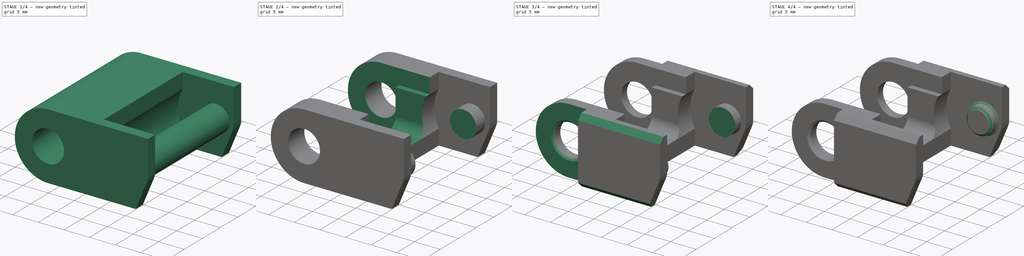
[diagram: build sequence overview — one tinted view per stage of 4, left to right]
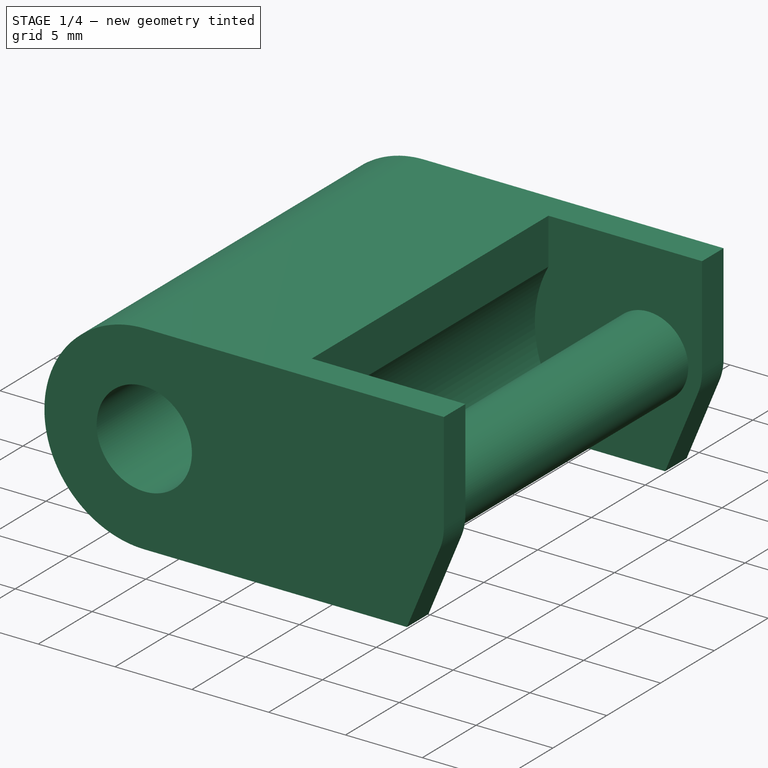
[diagram: stage 1 of 4 — iso view after this stage's code; geometry added in this stage tinted green]
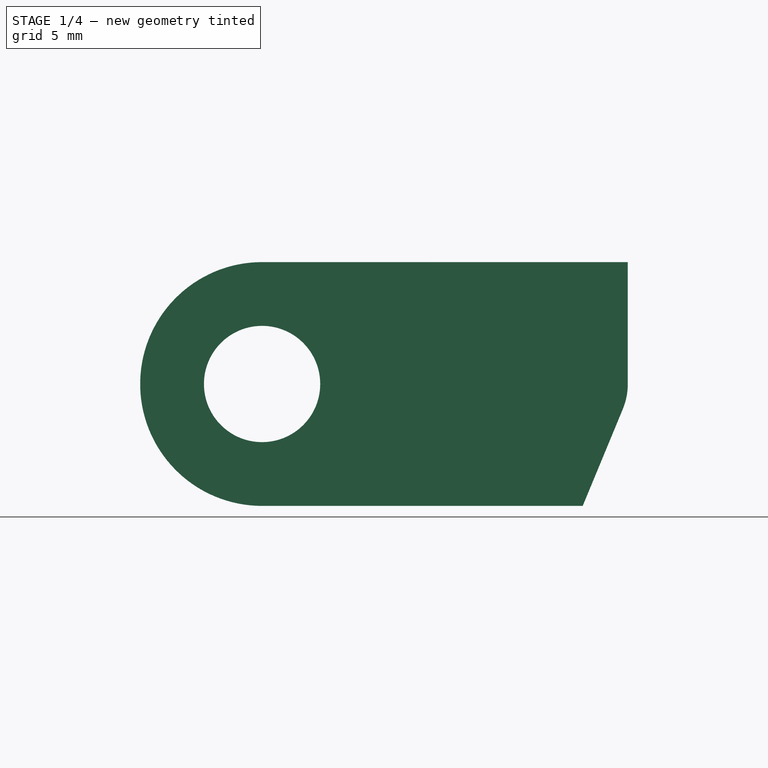
[diagram: stage 1 of 4 — front view after this stage's code; geometry added in this stage tinted green]
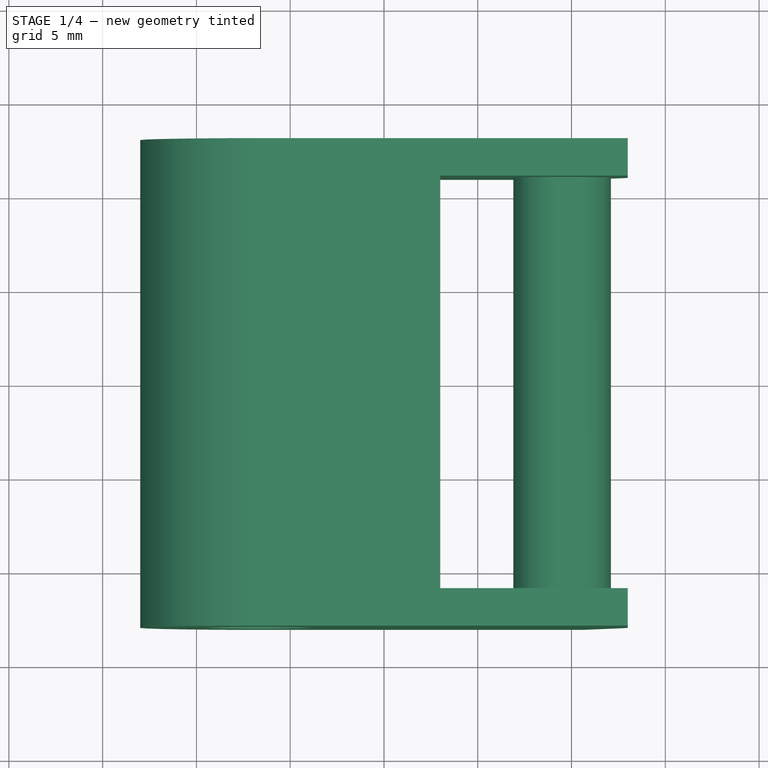
[diagram: stage 1 of 4 — top view after this stage's code; geometry added in this stage tinted green]
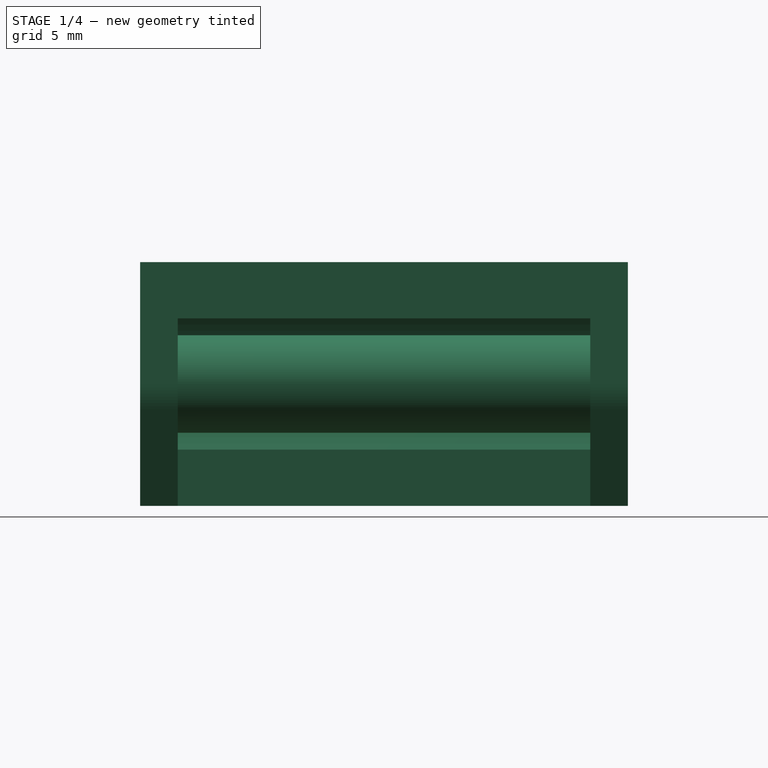
[diagram: stage 1 of 4 — right view after this stage's code; geometry added in this stage tinted green]
FCSTD DOCUMENT  (FreeCAD 0.19R20209 (Git))
Label: DragChainTop_001
License: Creative Commons Attribution
LicenseURL: http://creativecommons.org/licenses/by/4.0/
objects: Sketcher::SketchObject×5, PartDesign::Pocket×4, PartDesign::Chamfer×4, PartDesign::Pad×1, PartDesign::Body×1
note: 24 computed .brp shape members not serialized (recipe doc carries the construction recipe); baked Part::Feature solids carry a one-line shape summary decoded from their .brp

FEATURE [Sketcher::SketchObject] Sketch
  MapMode = 5
  Placement = pos=(0,0,0) rot=(1,0,0;1.5708rad)
  Support = -> [XZ_Plane]
  sketch-geometry (8):
    g0: LineSegment StartX=-6.5 StartY=6.5 StartZ=0 EndX=13 EndY=6.5 EndZ=0
    g1: LineSegment StartX=10.596 StartY=-6.5 StartZ=0 EndX=-6.5 EndY=-6.5 EndZ=0
    g2: LineSegment [constr] StartX=-13 StartY=-6.5 StartZ=0 EndX=-13 EndY=6.5 EndZ=0
    g3: ArcOfCircle CenterX=-6.5 CenterY=0 CenterZ=0 NormalX=0 NormalY=0 NormalZ=1 AngleXU=0 Radius=6.5 StartAngle=1.5708 EndAngle=4.71239
    g4: LineSegment StartX=13 StartY=6.5 StartZ=0 EndX=13 EndY=-9e-16 EndZ=0
    g5: LineSegment StartX=12.7336 StartY=-1.33939 StartZ=0 EndX=10.596 EndY=-6.5 EndZ=0
    g6: Circle CenterX=-6.5 CenterY=0 CenterZ=0 NormalX=0 NormalY=0 NormalZ=1 AngleXU=0 Radius=3.1
    g7: ArcOfCircle CenterX=9.5 CenterY=0 CenterZ=0 NormalX=0 NormalY=0 NormalZ=1 AngleXU=0 Radius=3.5 StartAngle=5.89049 EndAngle=6.28319
  constraints (22):
    c: Horizontal(g0)
    c: Horizontal(g1)
    c: DistanceX(g2,g0) = 26
    c: PointOnObject(g3,g-1)
    c: Vertical(g3,g3)
    c: Angle(g3) = 3.14159
    c: Tangent(g3,g2)
    c: Coincident(g0,g3)
    c: Coincident(g1,g3)
    c: Symmetric(g2,g2,g-1)
    c: DistanceY(g2,g2) = 13
    c: Vertical(g4)
    c: Coincident(g4,g0)
    c: Coincident(g5,g1)
    c: Diameter(g6) = 6.2
    c: Coincident(g6,g3)
    c: Symmetric(g0,g2,g-1)
    c: PointOnObject(g7,g-1)
    c: DistanceX(g3,g7) = 16
    c: Angle(g4,g5) = 2.74889
    c: Tangent(g5,g7) = 1.5708
    c: Tangent(g4,g7) = 1.5708
FEATURE [PartDesign::Pad] Pad
  Length = 26
  Length2 = 100
  Midplane = true
  Placement = pos=(0,0,0) rot=(1,0,0;1.5708rad)
  Profile = -> Sketch
  Refine = true
  Type = 0
FEATURE [Sketcher::SketchObject] Sketch001
  ExternalGeometry = -> [Pad]
  MapMode = 5
  Placement = pos=(0,0,0) rot=(1,0,0;1.5708rad)
  Support = -> [XZ_Plane]
  sketch-geometry (11):
    g0: Circle CenterX=9.5 CenterY=0 CenterZ=0 NormalX=0 NormalY=0 NormalZ=1 AngleXU=0 Radius=2.6
    g1: ArcOfCircle CenterX=9.5 CenterY=0 CenterZ=0 NormalX=0 NormalY=0 NormalZ=1 AngleXU=0 Radius=7.38241 StartAngle=2.64765 EndAngle=3.63553
    g2: LineSegment [constr] StartX=-3 StartY=11.0781 StartZ=0 EndX=3 EndY=11.0781 EndZ=0
    g3: LineSegment [constr] StartX=3 StartY=11.0781 StartZ=0 EndX=3 EndY=-11.0781 EndZ=0
    g4: LineSegment [constr] StartX=3 StartY=-11.0781 StartZ=0 EndX=-3 EndY=-11.0781 EndZ=0
    g5: LineSegment [constr] StartX=-3 StartY=-11.0781 StartZ=0 EndX=-3 EndY=11.0781 EndZ=0
    g6: LineSegment StartX=9.5 StartY=7.38241 StartZ=0 EndX=3 EndY=7.38241 EndZ=0
    g7: LineSegment StartX=3 StartY=7.38241 StartZ=0 EndX=3 EndY=3.5 EndZ=0
    g8: LineSegment StartX=3 StartY=-7.38241 StartZ=0 EndX=9.5 EndY=-7.38241 EndZ=0
    g9: LineSegment StartX=3 StartY=-3.5 StartZ=0 EndX=3 EndY=-7.38241 EndZ=0
    g10: ArcOfCircle CenterX=9.5 CenterY=0 CenterZ=0 NormalX=0 NormalY=0 NormalZ=1 AngleXU=0 Radius=7.38241 StartAngle=4.71239 EndAngle=7.85398
  constraints (29):
    c: Diameter(g0) = 5.2
    c: Coincident(g1,g0)
    c: Coincident(g0,g-3)
    c: PointOnObject(g-5,g1)
    c: Coincident(g2,g3)
    c: Coincident(g3,g4)
    c: Coincident(g4,g5)
    c: Coincident(g5,g2)
    c: Horizontal(g2)
    c: Horizontal(g4)
    c: Vertical(g3)
    c: Vertical(g5)
    c: Symmetric(g3,g2,g-1)
    c: DistanceX(g2,g2) = 6
    c: Coincident(g6,g7)
    c: Vertical(g7)
    c: Coincident(g9,g8)
    c: Horizontal(g8)
    c: Horizontal(g6)
    c: PointOnObject(g6,g3)
    c: PointOnObject(g7,g1)
    c: PointOnObject(g9,g1)
    c: Tangent(g7,g9)
    c: PointOnObject(g1,g3)
    c: PointOnObject(g10,g6)
    c: Equal(g1,g10)
    c: PointOnObject(g1,g3)
    c: Coincident(g10,g8)
    c: Coincident(g1,g10)
FEATURE [PartDesign::Pocket] Pocket
  BaseFeature = -> Pad
  Length = 22
  Length2 = 100
  Midplane = true
  Placement = pos=(0,0,0) rot=(1,0,0;1.5708rad)
  Profile = -> Sketch001
  Refine = true
  Type = 0
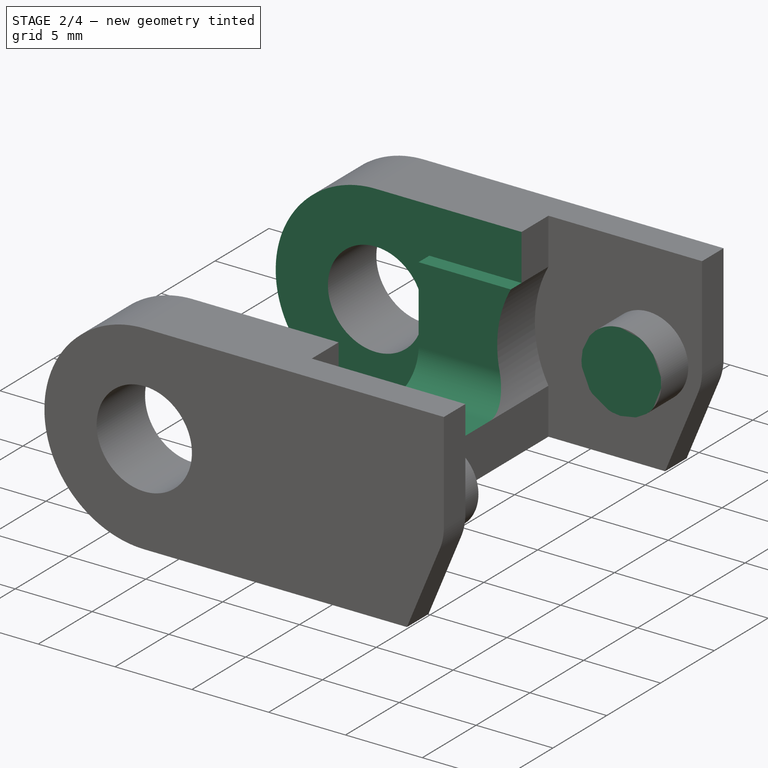
[diagram: stage 2 of 4 — iso view after this stage's code; geometry added in this stage tinted green]
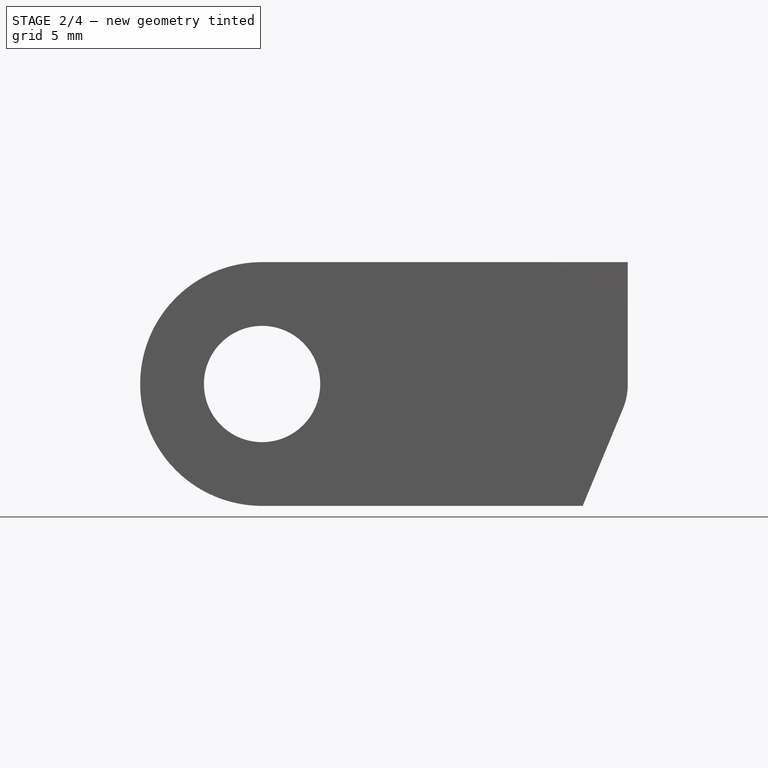
[diagram: stage 2 of 4 — front view after this stage's code; geometry added in this stage tinted green]
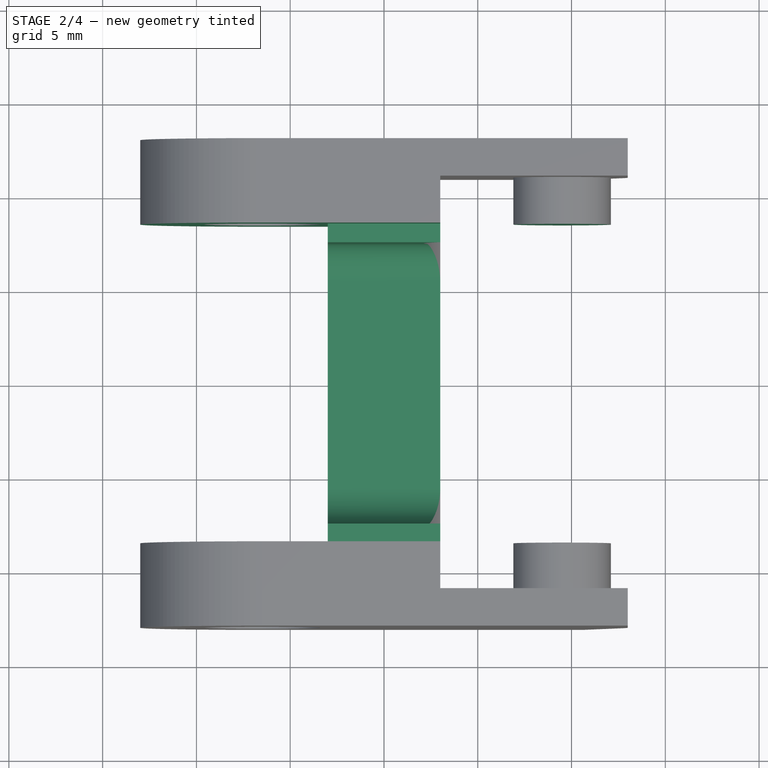
[diagram: stage 2 of 4 — top view after this stage's code; geometry added in this stage tinted green]
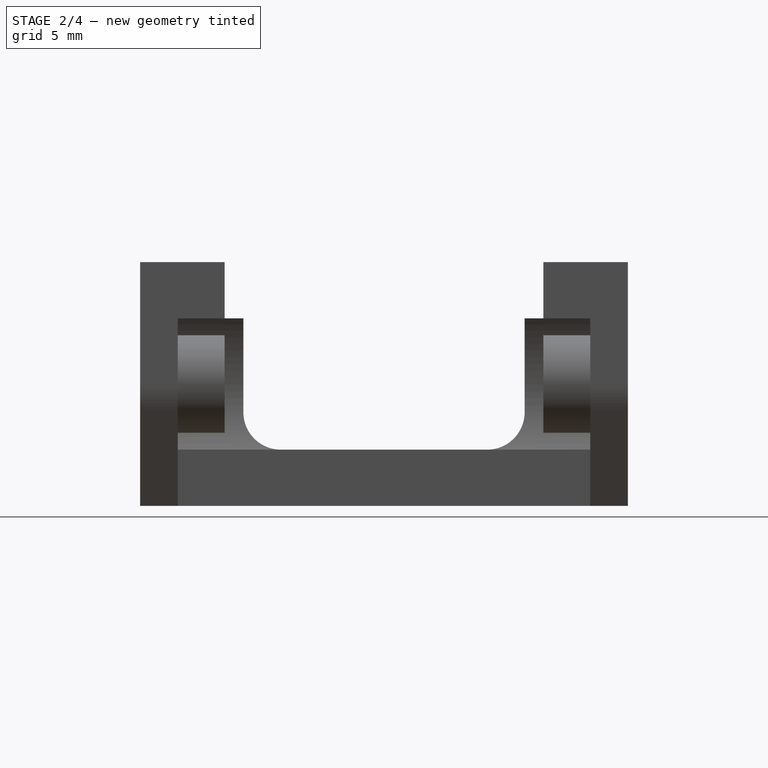
[diagram: stage 2 of 4 — right view after this stage's code; geometry added in this stage tinted green]
FEATURE [Sketcher::SketchObject] Sketch002
  ExternalGeometry = -> [Pocket]
  MapMode = 5
  Placement = pos=(0,0,0) rot=(1,0,0;1.5708rad)
  Support = -> [XZ_Plane]
  sketch-geometry (8):
    g0: ArcOfCircle CenterX=-6.5 CenterY=0 CenterZ=0 NormalX=0 NormalY=0 NormalZ=1 AngleXU=0 Radius=9.5 StartAngle=1.5708 EndAngle=4.71239
    g1: LineSegment StartX=-6.5 StartY=9.5 StartZ=0 EndX=16 EndY=9.5 EndZ=0
    g2: LineSegment StartX=16 StartY=9.5 StartZ=0 EndX=16 EndY=-9.5 EndZ=0
    g3: LineSegment StartX=-3 StartY=3.5 StartZ=0 EndX=-3 EndY=-9.5 EndZ=0
    g4: LineSegment StartX=-3 StartY=-9.5 StartZ=0 EndX=-6.5 EndY=-9.5 EndZ=0
    g5: LineSegment StartX=-3 StartY=3.5 StartZ=0 EndX=3 EndY=3.5 EndZ=0
    g6: LineSegment StartX=3 StartY=3.5 StartZ=0 EndX=3 EndY=-9.5 EndZ=0
    g7: LineSegment StartX=3 StartY=-9.5 StartZ=0 EndX=16 EndY=-9.5 EndZ=0
  constraints (24):
    c: Coincident(g0,g-4)
    c: Angle(g0) = 3.14159
    c: Vertical(g0,g0)
    c: Horizontal(g1)
    c: Coincident(g1,g2)
    c: Vertical(g2)
    c: Vertical(g3)
    c: Coincident(g3,g4)
    c: Horizontal(g4)
    c: Coincident(g1,g0)
    c: Coincident(g4,g0)
    c: DistanceX(g3,g-1) = 3
    c: DistanceX(g-3,g2) = 3
    c: DistanceY(g3,g-3) = 3
    c: Horizontal(g5)
    c: Coincident(g5,g6)
    c: Vertical(g6)
    c: Coincident(g6,g7)
    c: Horizontal(g7)
    c: Coincident(g7,g2)
    c: Coincident(g5,g3)
    c: DistanceX(g5,g5) = 6
    c: Horizontal(g6,g3)
    c: DistanceY(g3,g0) = 6
FEATURE [PartDesign::Pocket] Pocket001
  BaseFeature = -> Pocket
  Length = 17
  Length2 = 100
  Midplane = true
  Placement = pos=(0,0,0) rot=(1,0,0;1.5708rad)
  Profile = -> Sketch002
  Refine = true
  Type = 0
FEATURE [Sketcher::SketchObject] Sketch003
  ExternalGeometry = -> [Pocket001]
  MapMode = 5
  Placement = pos=(0,0,0) rot=(0.57735,0.57735,0.57735;2.0944rad)
  Support = -> [YZ_Plane]
  sketch-geometry (6):
    g0: LineSegment StartX=-7.5 StartY=6.5 StartZ=0 EndX=7.5 EndY=6.5 EndZ=0
    g1: LineSegment StartX=7.5 StartY=6.5 StartZ=0 EndX=7.5 EndY=-1.5 EndZ=0
    g2: LineSegment StartX=5.5 StartY=-3.5 StartZ=0 EndX=-5.50001 EndY=-3.5 EndZ=0
    g3: LineSegment StartX=-7.5 StartY=-1.5 StartZ=0 EndX=-7.5 EndY=6.5 EndZ=0
    g4: ArcOfCircle CenterX=-5.5 CenterY=-1.5 CenterZ=0 NormalX=0 NormalY=0 NormalZ=1 AngleXU=0 Radius=2 StartAngle=3.14159 EndAngle=4.71238
    g5: ArcOfCircle CenterX=5.5 CenterY=-1.5 CenterZ=0 NormalX=0 NormalY=0 NormalZ=1 AngleXU=0 Radius=2 StartAngle=4.71239 EndAngle=6.28319
  constraints (17):
    c: Coincident(g0,g1)
    c: Vertical(g1)
    c: Tangent(g2,g5) = 1.5708
    c: Tangent(g1,g5) = 1.5708
    c: Equal(g5,g4)
    c: DistanceY(g3,g3) = 8
    c: Vertical(g3)
    c: Horizontal(g2)
    c: Coincident(g2,g4)
    c: Coincident(g3,g4)
    c: Coincident(g3,g0)
    c: Horizontal(g3,g1)
    c: Horizontal(g5,g4)
    c: Symmetric(g0,g0,g-2)
    c: DistanceX(g0,g0) = 15
    c: Radius(g5) = 2
    c: PointOnObject(g2,g-4)
FEATURE [PartDesign::Pocket] Pocket002
  BaseFeature = -> Pocket001
  Length = 5
  Length2 = 100
  Midplane = true
  Placement = pos=(0,0,0) rot=(1,0,0;1.5708rad)
  Profile = -> Sketch003
  Refine = true
  Type = 1
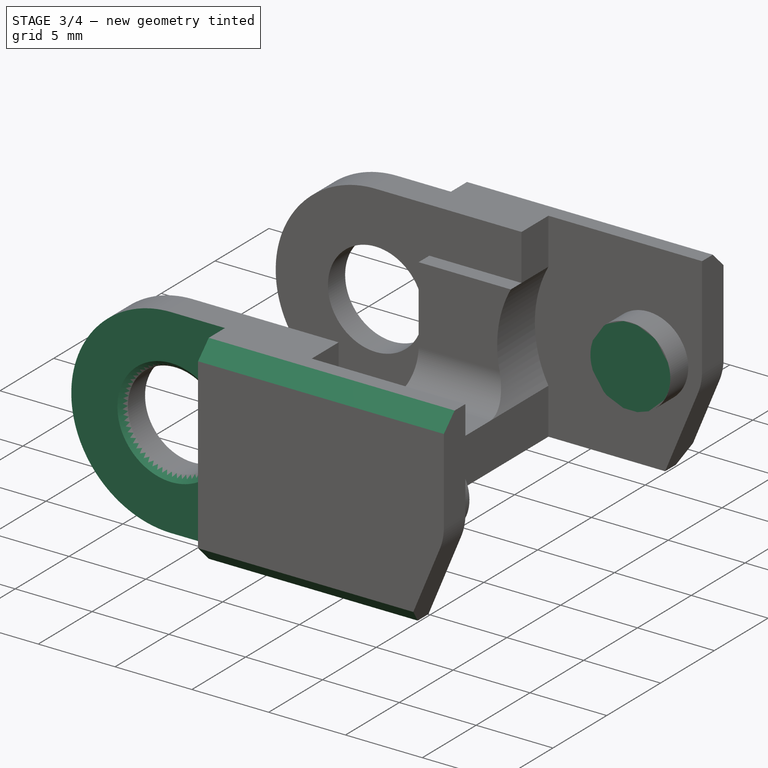
[diagram: stage 3 of 4 — iso view after this stage's code; geometry added in this stage tinted green]
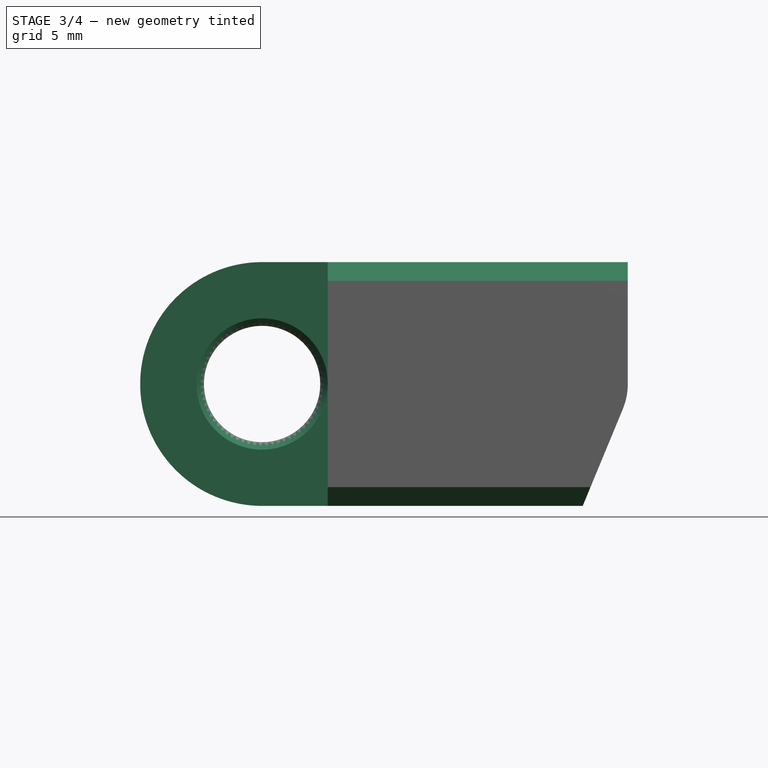
[diagram: stage 3 of 4 — front view after this stage's code; geometry added in this stage tinted green]
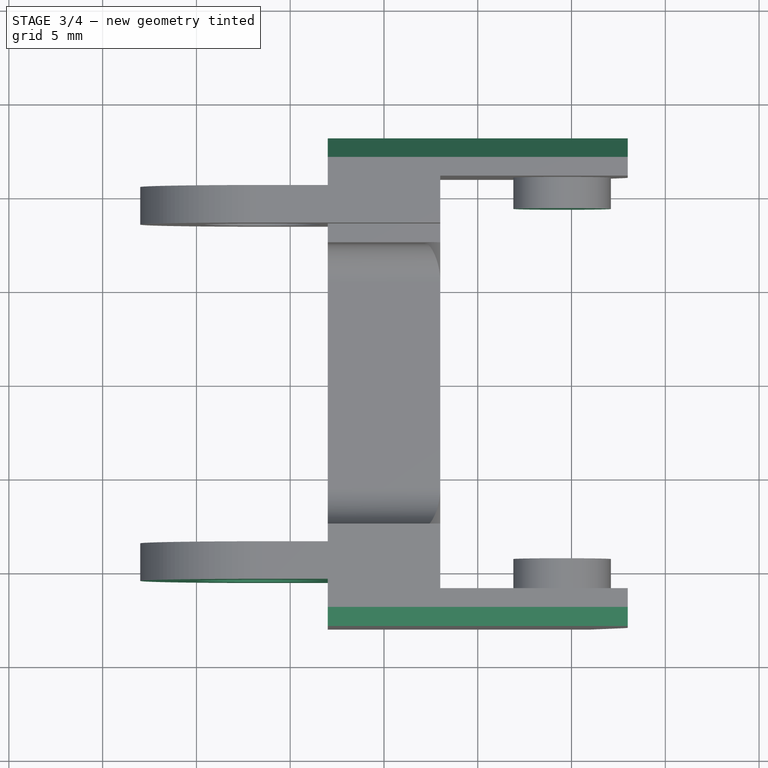
[diagram: stage 3 of 4 — top view after this stage's code; geometry added in this stage tinted green]
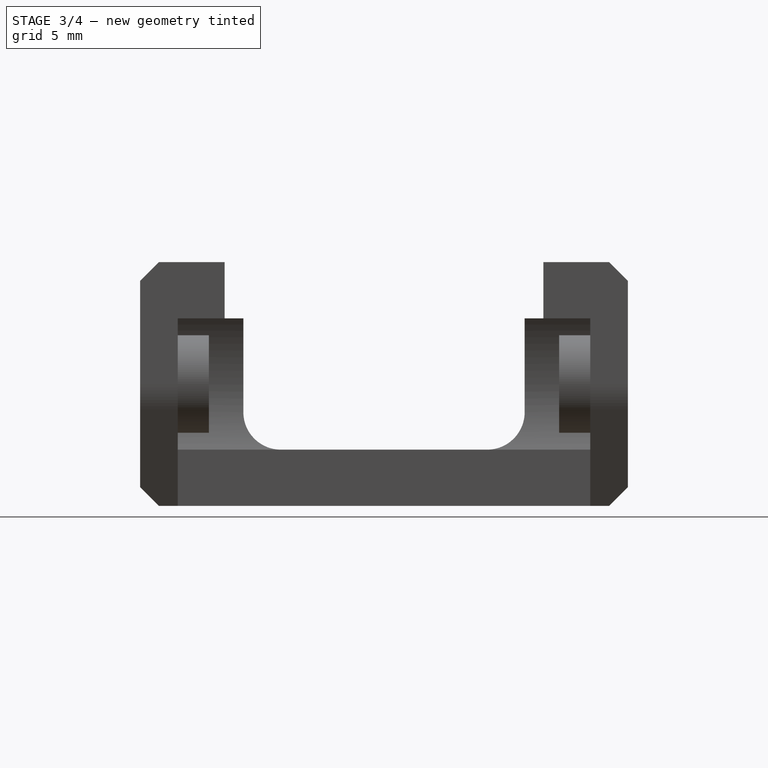
[diagram: stage 3 of 4 — right view after this stage's code; geometry added in this stage tinted green]
FEATURE [Sketcher::SketchObject] Sketch004
  MapMode = 5
  Support = -> [XY_Plane]
  expr: Constraints[17] = 26 - 5
  sketch-geometry (12):
    g0: LineSegment StartX=-3 StartY=20.1348 StartZ=0 EndX=-3 EndY=10.5 EndZ=0
    g1: LineSegment StartX=-3 StartY=10.5 StartZ=0 EndX=-14.5689 EndY=10.5 EndZ=0
    g2: LineSegment StartX=-14.5689 StartY=10.5 StartZ=0 EndX=-14.5689 EndY=-10.5 EndZ=0
    g3: LineSegment StartX=-14.5689 StartY=-10.5 StartZ=0 EndX=-3 EndY=-10.5 EndZ=0
    g4: LineSegment StartX=-3 StartY=-10.5 StartZ=0 EndX=-3 EndY=-20.6506 EndZ=0
    g5: LineSegment StartX=-3 StartY=-20.6506 StartZ=0 EndX=-19.1921 EndY=-20.6506 EndZ=0
    g6: LineSegment StartX=-19.1921 StartY=-20.6506 StartZ=0 EndX=-19.1921 EndY=20.1348 EndZ=0
    g7: LineSegment StartX=-19.1921 StartY=20.1348 StartZ=0 EndX=-3 EndY=20.1348 EndZ=0
    g8: LineSegment StartX=5.51282 StartY=9.33583 StartZ=0 EndX=14.6308 EndY=9.33583 EndZ=0
    g9: LineSegment StartX=14.6308 StartY=9.33583 StartZ=0 EndX=14.6308 EndY=-9.33583 EndZ=0
    g10: LineSegment StartX=14.6308 StartY=-9.33583 StartZ=0 EndX=5.51282 EndY=-9.33583 EndZ=0
    g11: LineSegment StartX=5.51282 StartY=-9.33583 StartZ=0 EndX=5.51282 EndY=9.33583 EndZ=0
  constraints (27):
    c: Vertical(g0)
    c: Coincident(g0,g1)
    c: Horizontal(g1)
    c: Coincident(g1,g2)
    c: Coincident(g2,g3)
    c: Horizontal(g3)
    c: Coincident(g3,g4)
    c: Vertical(g4)
    c: Coincident(g4,g5)
    c: Horizontal(g5)
    c: Coincident(g5,g6)
    c: Vertical(g6)
    c: Coincident(g6,g7)
    c: Horizontal(g7)
    c: Coincident(g7,g0)
    c: Vertical(g0,g3)
    c: DistanceX(g0,g-1) = 3
    c: DistanceY(g2,g2) = 21
    c: Symmetric(g2,g1,g-1)
    c: Coincident(g8,g9)
    c: Coincident(g9,g10)
    c: Coincident(g10,g11)
    c: Coincident(g11,g8)
    c: Horizontal(g8)
    c: Horizontal(g10)
    c: Vertical(g11)
    c: Symmetric(g8,g9,g-1)
FEATURE [PartDesign::Pocket] Pocket003
  BaseFeature = -> Pocket002
  Length = 5
  Length2 = 100
  Midplane = true
  Placement = pos=(0,0,0) rot=(1,0,0;1.5708rad)
  Profile = -> Sketch004
  Refine = true
  Type = 1
FEATURE [PartDesign::Chamfer] Chamfer
  Base = -> Pocket003 [Edge68,Edge7,Edge19,Edge9]
  BaseFeature = -> Pocket003
  Placement = pos=(0,0,0) rot=(1,0,0;1.5708rad)
  Refine = true
  Size = 1
  SupportTransform = true
FEATURE [PartDesign::Chamfer] Chamfer001
  Base = -> Chamfer [Edge43,Edge84]
  BaseFeature = -> Chamfer
  Placement = pos=(0,0,0) rot=(1,0,0;1.5708rad)
  Refine = true
  Size = 0.4
  SupportTransform = true
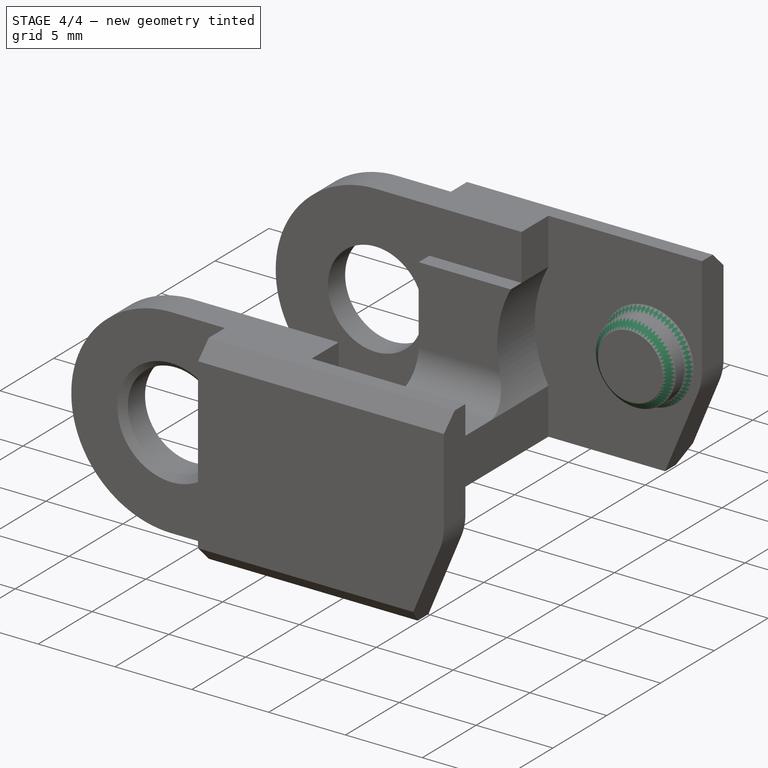
[diagram: stage 4 of 4 — iso view after this stage's code; geometry added in this stage tinted green]
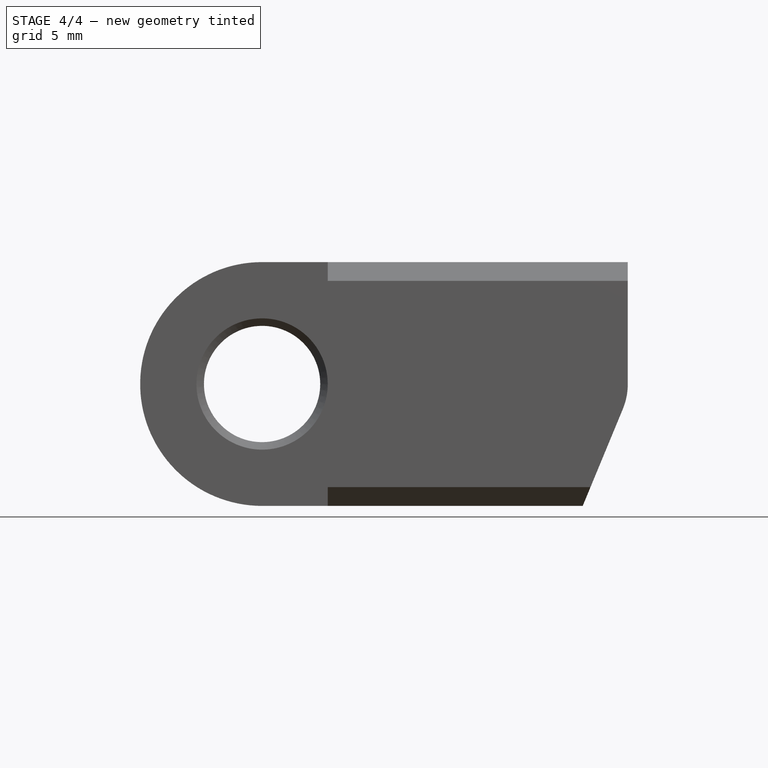
[diagram: stage 4 of 4 — front view after this stage's code; geometry added in this stage tinted green]
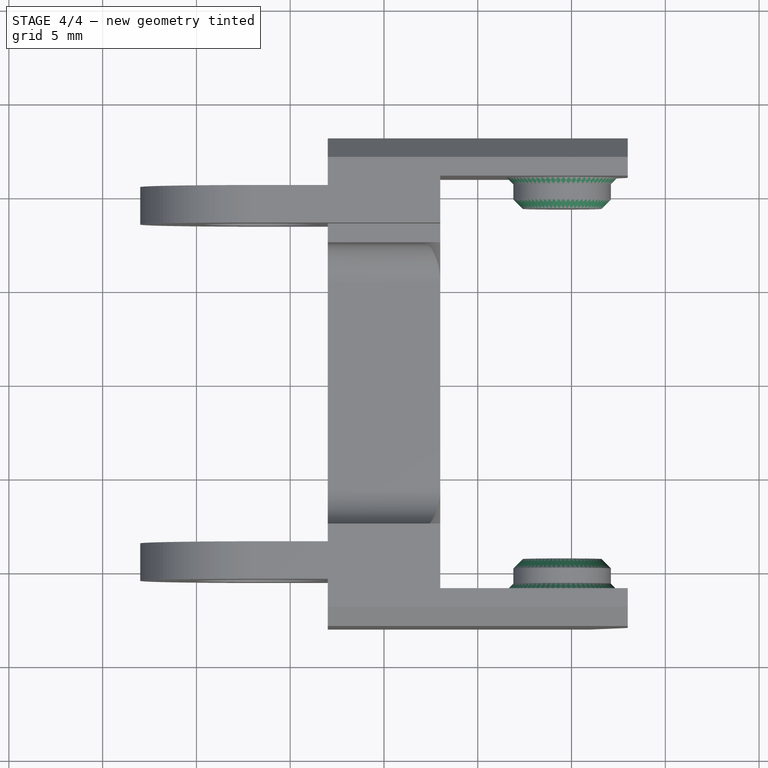
[diagram: stage 4 of 4 — top view after this stage's code; geometry added in this stage tinted green]
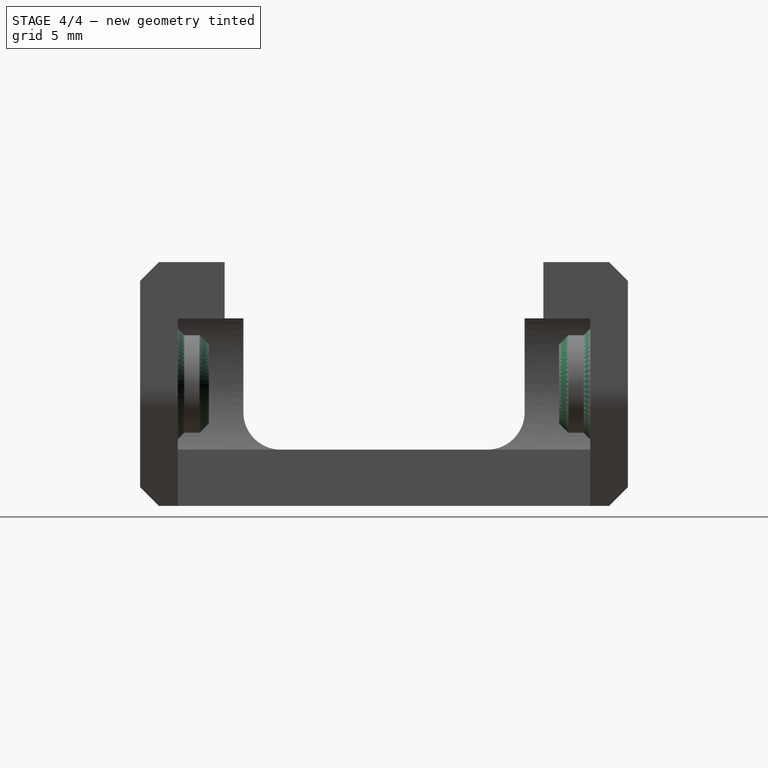
[diagram: stage 4 of 4 — right view after this stage's code; geometry added in this stage tinted green]
FEATURE [PartDesign::Chamfer] Chamfer002
  Base = -> Chamfer001 [Edge98,Edge118]
  BaseFeature = -> Chamfer001
  Placement = pos=(0,0,0) rot=(1,0,0;1.5708rad)
  Refine = true
  Size = 0.5
  SupportTransform = true
FEATURE [PartDesign::Chamfer] Chamfer003
  Base = -> Chamfer002 [Edge68,Edge3]
  BaseFeature = -> Chamfer002
  Placement = pos=(0,0,0) rot=(1,0,0;1.5708rad)
  Refine = true
  Size = 0.35
  SupportTransform = true
FEATURE [PartDesign::Body] Body
  Group = -> [Sketch,Pad,Sketch001,Pocket,Sketch002,Pocket001,Sketch003,Pocket002,Sketch004,Pocket003,Chamfer,Chamfer001,Chamfer002,Chamfer003]
  Origin = -> Origin
  Tip = -> Chamfer003
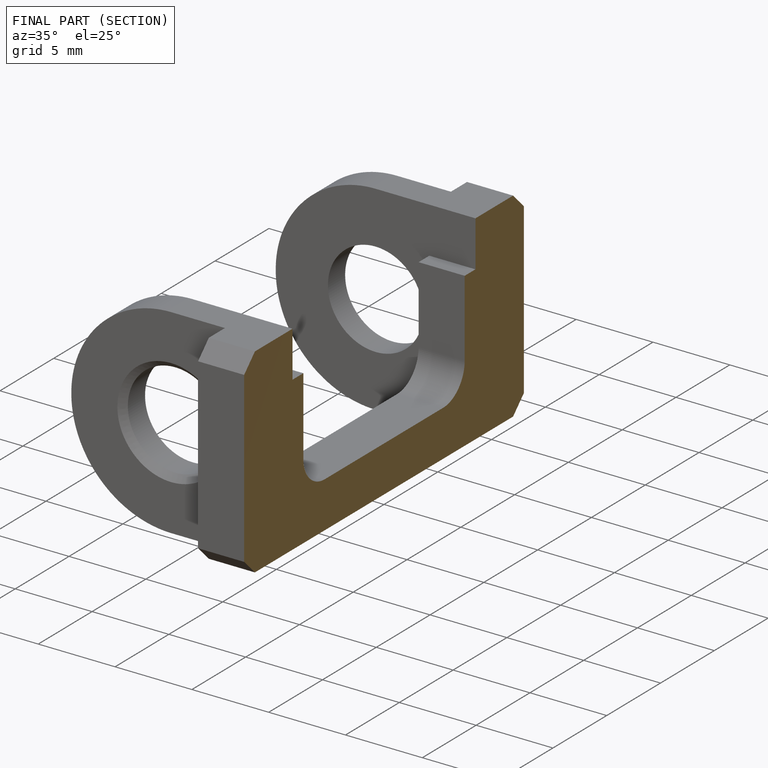
[diagram: finished part — half-section view (interior)]
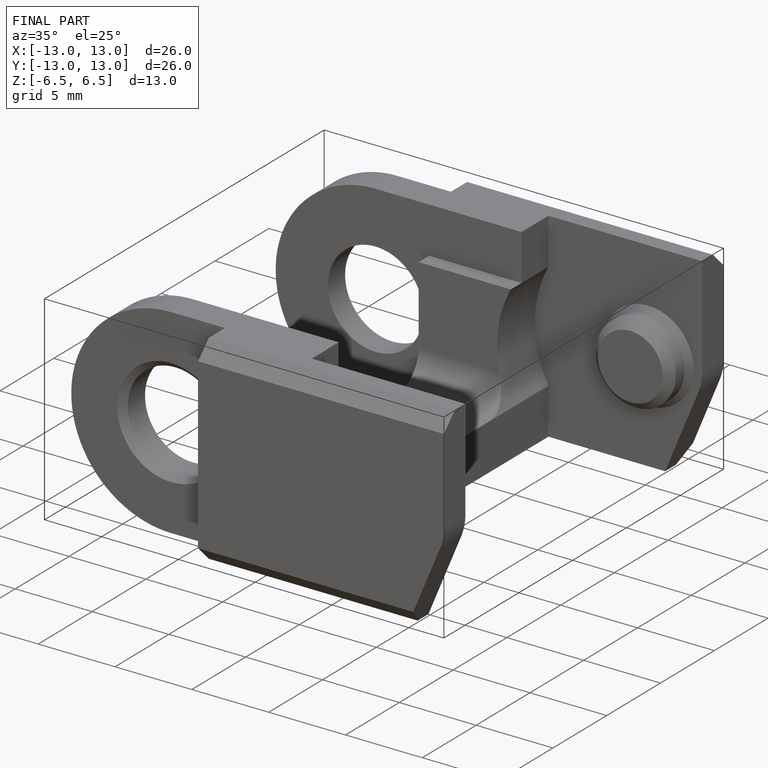
[diagram: finished part — iso view with bounding-box wireframe]
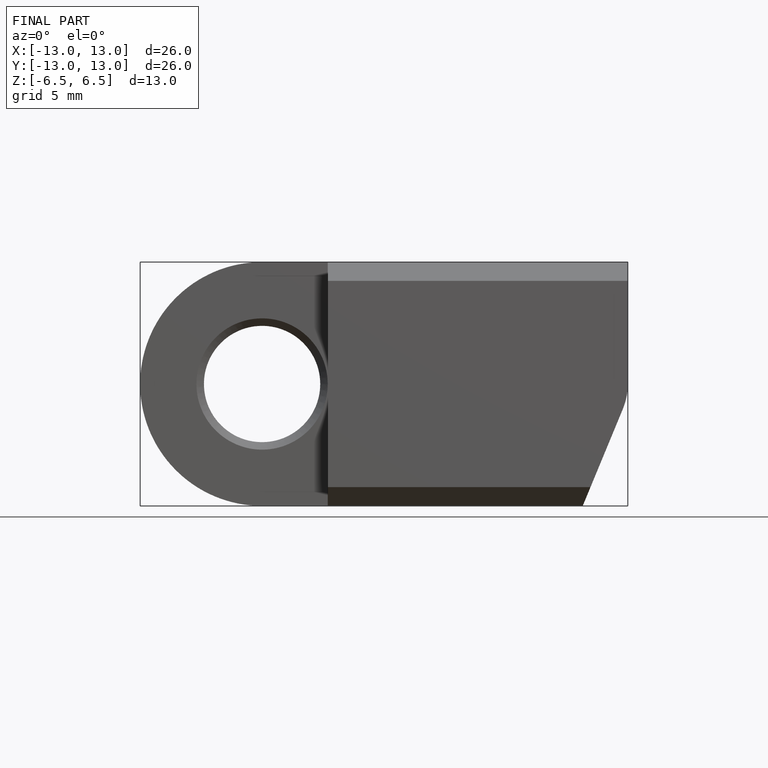
[diagram: finished part — front view with bounding-box wireframe]
